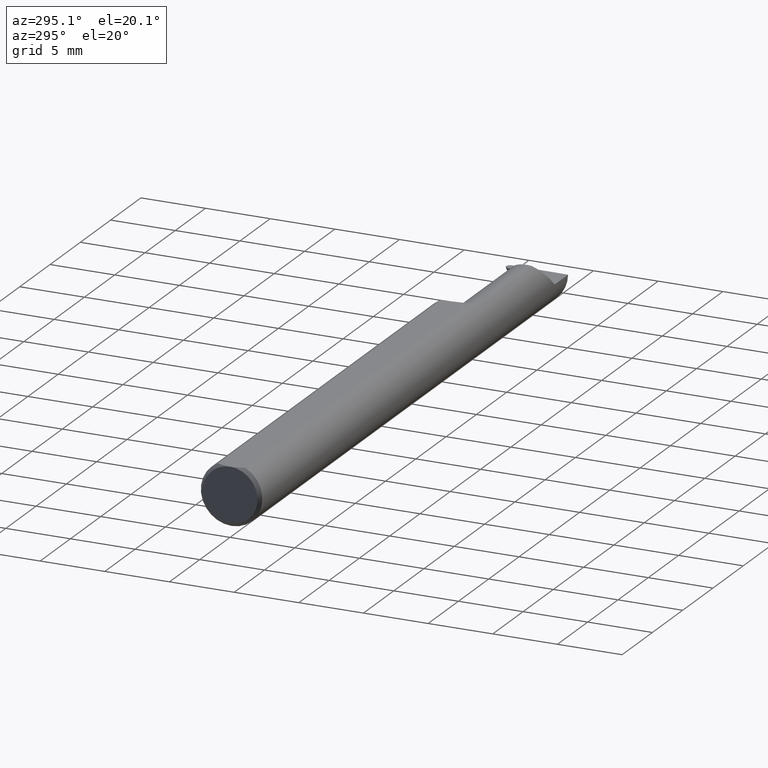
[diagram: clean part render]
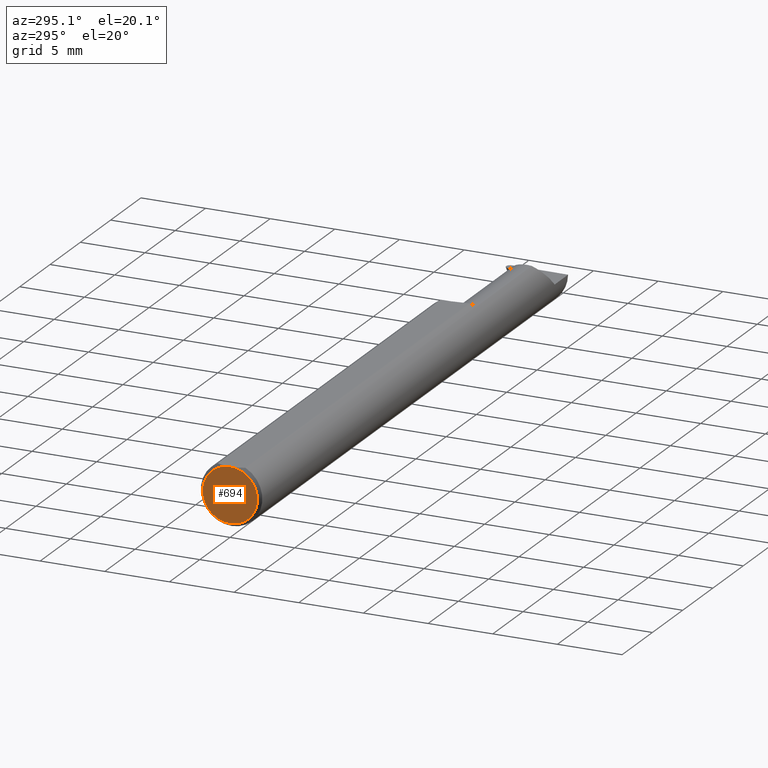
[diagram: same view with one face highlighted and labeled with its STEP entity id]
A machine part, auxiliary view. The second image highlights one B-rep face of the part: STEP entity #694.
In plain terms, the highlighted planar face has unit normal (1, 0, 0).
Its self-contained STEP definition (entity closure, byte-faithful):
#4 = DIRECTION ( 'NONE',  ( 0.000000000000000000, 0.000000000000000000, -1.000000000000000000 ) ) ;
#17 = CARTESIAN_POINT ( 'NONE',  ( 0.000000000000000000, 0.000000000000000000, 0.08359999999999991049 ) ) ;
#29 = AXIS2_PLACEMENT_3D ( 'NONE', #332, #285, #664 ) ;
#53 = AXIS2_PLACEMENT_3D ( 'NONE', #602, #427, #4 ) ;
#69 = FACE_OUTER_BOUND ( 'NONE', #203, .T. ) ;
#131 = ORIENTED_EDGE ( 'NONE', *, *, #569, .T. ) ;
#147 = DIRECTION ( 'NONE',  ( -1.000000000000000000, -0.000000000000000000, -0.000000000000000000 ) ) ;
#203 = EDGE_LOOP ( 'NONE', ( #493, #131 ) ) ;
#233 = VERTEX_POINT ( 'NONE', #17 ) ;
#273 = AXIS2_PLACEMENT_3D ( 'NONE', #485, #147, #654 ) ;
#285 = DIRECTION ( 'NONE',  ( 1.000000000000000000, 0.000000000000000000, 0.000000000000000000 ) ) ;
#301 = CARTESIAN_POINT ( 'NONE',  ( 0.000000000000000000, 0.000000000000000000, -0.08359999999999989662 ) ) ;
#332 = CARTESIAN_POINT ( 'NONE',  ( 0.000000000000000000, 0.000000000000000000, 0.000000000000000000 ) ) ;
#341 = PLANE ( 'NONE',  #29 ) ;
#406 = CIRCLE ( 'NONE', #273, 0.08359999999999989662 ) ;
#427 = DIRECTION ( 'NONE',  ( -1.000000000000000000, -0.000000000000000000, -0.000000000000000000 ) ) ;
#433 = VERTEX_POINT ( 'NONE', #301 ) ;
#483 = EDGE_CURVE ( 'NONE', #233, #433, #406, .T. ) ;
#485 = CARTESIAN_POINT ( 'NONE',  ( 0.000000000000000000, 0.000000000000000000, 0.000000000000000000 ) ) ;
#493 = ORIENTED_EDGE ( 'NONE', *, *, #483, .T. ) ;
#569 = EDGE_CURVE ( 'NONE', #433, #233, #663, .T. ) ;
#602 = CARTESIAN_POINT ( 'NONE',  ( 0.000000000000000000, 0.000000000000000000, 0.000000000000000000 ) ) ;
#654 = DIRECTION ( 'NONE',  ( 0.000000000000000000, 0.000000000000000000, -1.000000000000000000 ) ) ;
#663 = CIRCLE ( 'NONE', #53, 0.08359999999999989662 ) ;
#664 = DIRECTION ( 'NONE',  ( 0.000000000000000000, 0.000000000000000000, -1.000000000000000000 ) ) ;
#694 = ADVANCED_FACE ( 'NONE', ( #69 ), #341, .F. ) ;